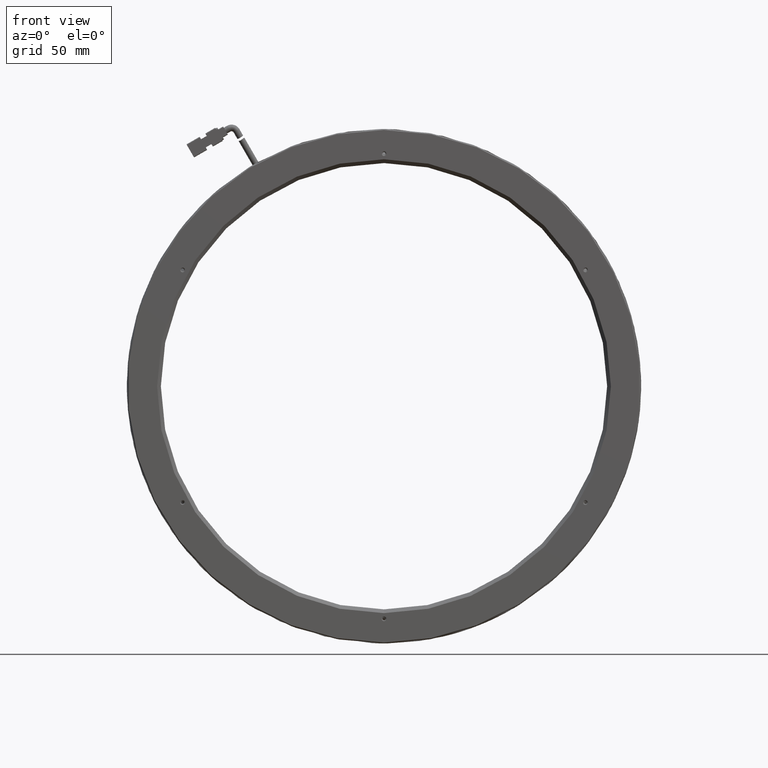
[diagram: clean part render]
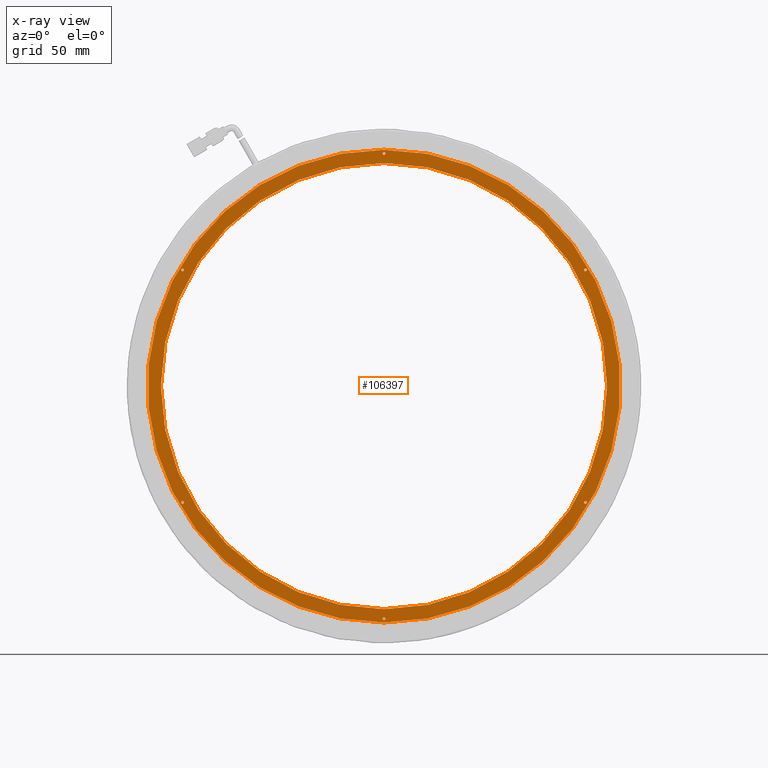
[diagram: x-ray — body ghosted, one internal face saturated and labeled with its STEP entity id]
A machine part, front view, then the same camera in x-ray: the body is ghosted and one INTERNAL B-rep face — a face not visible from any outside direction — is saturated and labeled: STEP entity #106397.
In plain terms, the highlighted planar face has unit normal (0, 1, 0).
Its self-contained STEP definition (entity closure, byte-faithful):
#405 = CIRCLE ( 'NONE', #15543, 118.0000000000000100 ) ;
#892 = EDGE_LOOP ( 'NONE', ( #45915, #57110 ) ) ;
#1363 = EDGE_CURVE ( 'NONE', #41764, #122029, #405, .T. ) ;
#1442 = EDGE_LOOP ( 'NONE', ( #34289, #35613 ) ) ;
#1987 = FACE_BOUND ( 'NONE', #42109, .T. ) ;
#5173 = FACE_BOUND ( 'NONE', #31593, .T. ) ;
#5849 = ORIENTED_EDGE ( 'NONE', *, *, #28556, .T. ) ;
#6993 = DIRECTION ( 'NONE',  ( 0.0000000000000000000, 0.0000000000000000000, -1.000000000000000000 ) ) ;
#7813 = CARTESIAN_POINT ( 'NONE',  ( -129.8241333476390500, 1.933023485299532300, -61.50000000000125100 ) ) ;
#8705 = ORIENTED_EDGE ( 'NONE', *, *, #52273, .T. ) ;
#11212 = ORIENTED_EDGE ( 'NONE', *, *, #24429, .T. ) ;
#11921 = DIRECTION ( 'NONE',  ( 0.0000000000000000000, -1.000000000000000000, 0.0000000000000000000 ) ) ;
#12129 = CARTESIAN_POINT ( 'NONE',  ( -23.30300868215464800, 1.933023485288069200, 123.0000000000000000 ) ) ;
#13226 = CIRCLE ( 'NONE', #29024, 0.7507161553474071000 ) ;
#15543 = AXIS2_PLACEMENT_3D ( 'NONE', #35036, #34585, #34151 ) ;
#15604 = EDGE_LOOP ( 'NONE', ( #25011, #8705 ) ) ;
#15693 = EDGE_CURVE ( 'NONE', #56769, #106658, #99228, .T. ) ;
#16611 = CARTESIAN_POINT ( 'NONE',  ( 83.21811598333189900, 1.933023485288069200, 62.25071615535772200 ) ) ;
#16804 = CARTESIAN_POINT ( 'NONE',  ( 83.21811598333189900, 1.933023485288069200, 60.74928384464328700 ) ) ;
#17117 = CARTESIAN_POINT ( 'NONE',  ( -23.30300868215464800, 1.933023485288069200, 123.0000000000000000 ) ) ;
#17426 = ORIENTED_EDGE ( 'NONE', *, *, #65097, .T. ) ;
#18190 = DIRECTION ( 'NONE',  ( 0.0000000000000000000, 0.0000000000000000000, -1.000000000000000000 ) ) ;
#19576 = ORIENTED_EDGE ( 'NONE', *, *, #125068, .T. ) ;
#21102 = AXIS2_PLACEMENT_3D ( 'NONE', #102322, #40325, #112795 ) ;
#22506 = DIRECTION ( 'NONE',  ( 0.0000000000000000000, 0.0000000000000000000, -1.000000000000000000 ) ) ;
#24113 = VERTEX_POINT ( 'NONE', #109080 ) ;
#24429 = EDGE_CURVE ( 'NONE', #51550, #83562, #58694, .T. ) ;
#24625 = CARTESIAN_POINT ( 'NONE',  ( -23.30300868215379100, 1.933023485320397400, -118.0000000000000100 ) ) ;
#25011 = ORIENTED_EDGE ( 'NONE', *, *, #1363, .T. ) ;
#25137 = EDGE_CURVE ( 'NONE', #24113, #56420, #124601, .T. ) ;
#25896 = AXIS2_PLACEMENT_3D ( 'NONE', #40032, #112492, #50395 ) ;
#26074 = CARTESIAN_POINT ( 'NONE',  ( -23.30300868215379100, 1.933023485320397400, 0.0000000000000000000 ) ) ;
#26104 = FACE_BOUND ( 'NONE', #33568, .T. ) ;
#27538 = DIRECTION ( 'NONE',  ( 0.0000000000000000000, 0.0000000000000000000, -1.000000000000000000 ) ) ;
#28556 = EDGE_CURVE ( 'NONE', #66247, #60150, #32400, .T. ) ;
#29024 = AXIS2_PLACEMENT_3D ( 'NONE', #34991, #107448, #45370 ) ;
#30454 = CARTESIAN_POINT ( 'NONE',  ( 83.21811598333189900, 1.933023485288069200, 61.50000000000050400 ) ) ;
#30473 = CARTESIAN_POINT ( 'NONE',  ( -129.8241333476390500, 1.933023485299532300, -61.50000000000125100 ) ) ;
#31285 = EDGE_CURVE ( 'NONE', #60150, #66247, #39982, .T. ) ;
#31352 = CARTESIAN_POINT ( 'NONE',  ( -129.8241333476390500, 1.933023485299532300, -62.25071615534716300 ) ) ;
#31593 = EDGE_LOOP ( 'NONE', ( #11212, #111479 ) ) ;
#32009 = EDGE_LOOP ( 'NONE', ( #5849, #34761 ) ) ;
#32398 = EDGE_CURVE ( 'NONE', #83444, #42403, #79761, .T. ) ;
#32400 = CIRCLE ( 'NONE', #131804, 0.7507161553139685100 ) ;
#33553 = CIRCLE ( 'NONE', #78565, 125.0000000000000000 ) ;
#33568 = EDGE_LOOP ( 'NONE', ( #17426, #93589 ) ) ;
#34151 = DIRECTION ( 'NONE',  ( 0.0000000000000000000, 0.0000000000000000000, -1.000000000000000000 ) ) ;
#34195 = EDGE_LOOP ( 'NONE', ( #19576, #96957 ) ) ;
#34289 = ORIENTED_EDGE ( 'NONE', *, *, #79352, .T. ) ;
#34340 = DIRECTION ( 'NONE',  ( -0.0000000000000000000, -1.000000000000000000, -0.0000000000000000000 ) ) ;
#34585 = DIRECTION ( 'NONE',  ( -0.0000000000000000000, -1.000000000000000000, -0.0000000000000000000 ) ) ;
#34761 = ORIENTED_EDGE ( 'NONE', *, *, #31285, .T. ) ;
#34991 = CARTESIAN_POINT ( 'NONE',  ( 83.21811598333231100, 1.933023485288069200, -61.49999999999975800 ) ) ;
#35036 = CARTESIAN_POINT ( 'NONE',  ( -23.30300868215379100, 1.933023485320397400, 0.0000000000000000000 ) ) ;
#35613 = ORIENTED_EDGE ( 'NONE', *, *, #25137, .T. ) ;
#36385 = EDGE_CURVE ( 'NONE', #67904, #83931, #72807, .T. ) ;
#36507 = DIRECTION ( 'NONE',  ( 0.0000000000000000000, 0.0000000000000000000, 1.000000000000000000 ) ) ;
#36923 = CARTESIAN_POINT ( 'NONE',  ( -23.30300868215379100, 1.933023485379065800, -123.7507161553139700 ) ) ;
#37445 = DIRECTION ( 'NONE',  ( 0.0000000000000000000, -1.000000000000000000, 0.0000000000000000000 ) ) ;
#39982 = CIRCLE ( 'NONE', #76904, 0.7507161553139685100 ) ;
#40032 = CARTESIAN_POINT ( 'NONE',  ( -129.8241333476403300, 1.933023485288069200, 61.49999999999900500 ) ) ;
#40325 = DIRECTION ( 'NONE',  ( 0.0000000000000000000, 1.000000000000000000, 0.0000000000000000000 ) ) ;
#40910 = DIRECTION ( 'NONE',  ( 0.0000000000000000000, 0.0000000000000000000, -1.000000000000000000 ) ) ;
#40935 = DIRECTION ( 'NONE',  ( 0.0000000000000000000, 0.0000000000000000000, -1.000000000000000000 ) ) ;
#41764 = VERTEX_POINT ( 'NONE', #24625 ) ;
#42109 = EDGE_LOOP ( 'NONE', ( #73964, #124062 ) ) ;
#42403 = VERTEX_POINT ( 'NONE', #16804 ) ;
#45370 = DIRECTION ( 'NONE',  ( 0.0000000000000000000, 0.0000000000000000000, -1.000000000000000000 ) ) ;
#45915 = ORIENTED_EDGE ( 'NONE', *, *, #100730, .T. ) ;
#47322 = EDGE_CURVE ( 'NONE', #82650, #51478, #64767, .T. ) ;
#50395 = DIRECTION ( 'NONE',  ( 0.0000000000000000000, 0.0000000000000000000, -1.000000000000000000 ) ) ;
#50959 = CARTESIAN_POINT ( 'NONE',  ( -23.30300868215379100, 1.933023485320397400, 0.0000000000000000000 ) ) ;
#51478 = VERTEX_POINT ( 'NONE', #92944 ) ;
#51550 = VERTEX_POINT ( 'NONE', #105186 ) ;
#52273 = EDGE_CURVE ( 'NONE', #122029, #41764, #79361, .T. ) ;
#52592 = CARTESIAN_POINT ( 'NONE',  ( -23.30300868215379100, 1.933023485379065800, -123.0000000000000000 ) ) ;
#53680 = FACE_BOUND ( 'NONE', #34195, .T. ) ;
#56420 = VERTEX_POINT ( 'NONE', #107526 ) ;
#56769 = VERTEX_POINT ( 'NONE', #31352 ) ;
#57073 = DIRECTION ( 'NONE',  ( 0.0000000000000000000, -1.000000000000000000, 0.0000000000000000000 ) ) ;
#57110 = ORIENTED_EDGE ( 'NONE', *, *, #36385, .T. ) ;
#57599 = AXIS2_PLACEMENT_3D ( 'NONE', #73947, #11921, #84314 ) ;
#58694 = CIRCLE ( 'NONE', #84239, 0.7507161552762209300 ) ;
#60150 = VERTEX_POINT ( 'NONE', #68996 ) ;
#61410 = DIRECTION ( 'NONE',  ( 0.0000000000000000000, 0.0000000000000000000, 1.000000000000000000 ) ) ;
#62403 = AXIS2_PLACEMENT_3D ( 'NONE', #17117, #89512, #27538 ) ;
#63048 = DIRECTION ( 'NONE',  ( 0.0000000000000000000, 0.0000000000000000000, -1.000000000000000000 ) ) ;
#64767 = CIRCLE ( 'NONE', #25896, 0.7507161553557197800 ) ;
#65097 = EDGE_CURVE ( 'NONE', #42403, #83444, #114904, .T. ) ;
#66247 = VERTEX_POINT ( 'NONE', #36923 ) ;
#67904 = VERTEX_POINT ( 'NONE', #128540 ) ;
#68953 = DIRECTION ( 'NONE',  ( 0.0000000000000000000, -1.000000000000000000, 0.0000000000000000000 ) ) ;
#68996 = CARTESIAN_POINT ( 'NONE',  ( -23.30300868215379100, 1.933023485379065800, -122.2492838446860300 ) ) ;
#70870 = CIRCLE ( 'NONE', #62403, 0.7507161552762209300 ) ;
#71330 = CARTESIAN_POINT ( 'NONE',  ( -23.30300868215464800, 1.933023485288069200, 123.7507161552762200 ) ) ;
#72807 = CIRCLE ( 'NONE', #57599, 0.7507161553474071000 ) ;
#73947 = CARTESIAN_POINT ( 'NONE',  ( 83.21811598333231100, 1.933023485288069200, -61.49999999999975800 ) ) ;
#73964 = ORIENTED_EDGE ( 'NONE', *, *, #15693, .T. ) ;
#75776 = CIRCLE ( 'NONE', #76334, 0.7507161553557197800 ) ;
#76334 = AXIS2_PLACEMENT_3D ( 'NONE', #119145, #57073, #129582 ) ;
#76904 = AXIS2_PLACEMENT_3D ( 'NONE', #52592, #125133, #63048 ) ;
#78565 = AXIS2_PLACEMENT_3D ( 'NONE', #50959, #123507, #61410 ) ;
#79352 = EDGE_CURVE ( 'NONE', #56420, #24113, #33553, .T. ) ;
#79361 = CIRCLE ( 'NONE', #95118, 118.0000000000000100 ) ;
#79761 = CIRCLE ( 'NONE', #132608, 0.7507161553572185800 ) ;
#80219 = DIRECTION ( 'NONE',  ( 0.0000000000000000000, -1.000000000000000000, 0.0000000000000000000 ) ) ;
#81198 = FACE_OUTER_BOUND ( 'NONE', #1442, .T. ) ;
#82650 = VERTEX_POINT ( 'NONE', #115506 ) ;
#83444 = VERTEX_POINT ( 'NONE', #16611 ) ;
#83562 = VERTEX_POINT ( 'NONE', #71330 ) ;
#83931 = VERTEX_POINT ( 'NONE', #107479 ) ;
#84239 = AXIS2_PLACEMENT_3D ( 'NONE', #12129, #84525, #22506 ) ;
#84314 = DIRECTION ( 'NONE',  ( 0.0000000000000000000, 0.0000000000000000000, -1.000000000000000000 ) ) ;
#84525 = DIRECTION ( 'NONE',  ( 0.0000000000000000000, -1.000000000000000000, 0.0000000000000000000 ) ) ;
#89512 = DIRECTION ( 'NONE',  ( 0.0000000000000000000, -1.000000000000000000, 0.0000000000000000000 ) ) ;
#92110 = AXIS2_PLACEMENT_3D ( 'NONE', #26074, #98517, #36507 ) ;
#92944 = CARTESIAN_POINT ( 'NONE',  ( -129.8241333476403300, 1.933023485288069200, 60.74928384464328700 ) ) ;
#93589 = ORIENTED_EDGE ( 'NONE', *, *, #32398, .T. ) ;
#95118 = AXIS2_PLACEMENT_3D ( 'NONE', #96363, #34340, #106802 ) ;
#96091 = AXIS2_PLACEMENT_3D ( 'NONE', #130981, #68953, #6993 ) ;
#96363 = CARTESIAN_POINT ( 'NONE',  ( -23.30300868215379100, 1.933023485320397400, 0.0000000000000000000 ) ) ;
#96957 = ORIENTED_EDGE ( 'NONE', *, *, #47322, .T. ) ;
#98093 = EDGE_CURVE ( 'NONE', #83562, #51550, #70870, .T. ) ;
#98517 = DIRECTION ( 'NONE',  ( -0.0000000000000000000, 1.000000000000000000, -0.0000000000000000000 ) ) ;
#99228 = CIRCLE ( 'NONE', #130142, 0.7507161553459151800 ) ;
#99444 = CARTESIAN_POINT ( 'NONE',  ( -23.30300868215379100, 1.933023485379065800, -123.0000000000000000 ) ) ;
#100730 = EDGE_CURVE ( 'NONE', #83931, #67904, #13226, .T. ) ;
#100934 = EDGE_CURVE ( 'NONE', #106658, #56769, #113484, .T. ) ;
#102322 = CARTESIAN_POINT ( 'NONE',  ( -23.30300868215379100, 1.933023485320397400, 0.0000000000000000000 ) ) ;
#102913 = DIRECTION ( 'NONE',  ( 0.0000000000000000000, -1.000000000000000000, 0.0000000000000000000 ) ) ;
#102934 = DIRECTION ( 'NONE',  ( 0.0000000000000000000, -1.000000000000000000, 0.0000000000000000000 ) ) ;
#105186 = CARTESIAN_POINT ( 'NONE',  ( -23.30300868215464800, 1.933023485288069200, 122.2492838447237800 ) ) ;
#106397 = ADVANCED_FACE ( 'NONE', ( #108757, #111996, #5173, #1987, #81198, #53680, #26104, #133047 ), #122769, .T. ) ;
#106658 = VERTEX_POINT ( 'NONE', #127241 ) ;
#106802 = DIRECTION ( 'NONE',  ( 0.0000000000000000000, 0.0000000000000000000, -1.000000000000000000 ) ) ;
#107448 = DIRECTION ( 'NONE',  ( 0.0000000000000000000, -1.000000000000000000, 0.0000000000000000000 ) ) ;
#107479 = CARTESIAN_POINT ( 'NONE',  ( 83.21811598333231100, 1.933023485288069200, -62.25071615534716300 ) ) ;
#107526 = CARTESIAN_POINT ( 'NONE',  ( -23.30300868215379100, 1.933023485320397400, 125.0000000000000000 ) ) ;
#108757 = FACE_BOUND ( 'NONE', #15604, .T. ) ;
#109080 = CARTESIAN_POINT ( 'NONE',  ( -23.30300868215377700, 1.933023485320397400, -125.0000000000000000 ) ) ;
#109783 = AXIS2_PLACEMENT_3D ( 'NONE', #7813, #80219, #18190 ) ;
#109893 = DIRECTION ( 'NONE',  ( 0.0000000000000000000, 0.0000000000000000000, -1.000000000000000000 ) ) ;
#111479 = ORIENTED_EDGE ( 'NONE', *, *, #98093, .T. ) ;
#111996 = FACE_BOUND ( 'NONE', #892, .T. ) ;
#112492 = DIRECTION ( 'NONE',  ( 0.0000000000000000000, -1.000000000000000000, 0.0000000000000000000 ) ) ;
#112493 = CARTESIAN_POINT ( 'NONE',  ( -23.30300868215377700, 1.933023485320397400, 118.0000000000000100 ) ) ;
#112795 = DIRECTION ( 'NONE',  ( 0.0000000000000000000, -0.0000000000000000000, 1.000000000000000000 ) ) ;
#113484 = CIRCLE ( 'NONE', #109783, 0.7507161553459151800 ) ;
#114904 = CIRCLE ( 'NONE', #96091, 0.7507161553572185800 ) ;
#115506 = CARTESIAN_POINT ( 'NONE',  ( -129.8241333476403300, 1.933023485288069200, 62.25071615535472300 ) ) ;
#119145 = CARTESIAN_POINT ( 'NONE',  ( -129.8241333476403300, 1.933023485288069200, 61.49999999999900500 ) ) ;
#122029 = VERTEX_POINT ( 'NONE', #112493 ) ;
#122769 = PLANE ( 'NONE',  #21102 ) ;
#123507 = DIRECTION ( 'NONE',  ( -0.0000000000000000000, 1.000000000000000000, -0.0000000000000000000 ) ) ;
#124062 = ORIENTED_EDGE ( 'NONE', *, *, #100934, .T. ) ;
#124601 = CIRCLE ( 'NONE', #92110, 125.0000000000000000 ) ;
#125068 = EDGE_CURVE ( 'NONE', #51478, #82650, #75776, .T. ) ;
#125133 = DIRECTION ( 'NONE',  ( 0.0000000000000000000, -1.000000000000000000, 0.0000000000000000000 ) ) ;
#127241 = CARTESIAN_POINT ( 'NONE',  ( -129.8241333476390500, 1.933023485299532300, -60.74928384465533100 ) ) ;
#128540 = CARTESIAN_POINT ( 'NONE',  ( 83.21811598333231100, 1.933023485288069200, -60.74928384465234600 ) ) ;
#129582 = DIRECTION ( 'NONE',  ( 0.0000000000000000000, 0.0000000000000000000, -1.000000000000000000 ) ) ;
#130142 = AXIS2_PLACEMENT_3D ( 'NONE', #30473, #102934, #40935 ) ;
#130981 = CARTESIAN_POINT ( 'NONE',  ( 83.21811598333189900, 1.933023485288069200, 61.50000000000050400 ) ) ;
#131804 = AXIS2_PLACEMENT_3D ( 'NONE', #99444, #37445, #109893 ) ;
#132608 = AXIS2_PLACEMENT_3D ( 'NONE', #30454, #102913, #40910 ) ;
#133047 = FACE_BOUND ( 'NONE', #32009, .T. ) ;